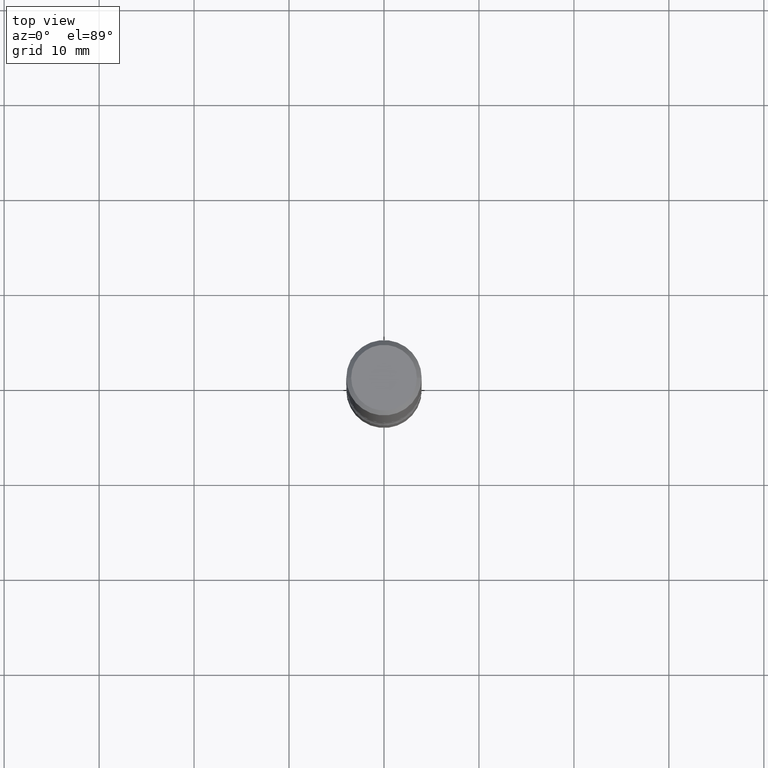
[diagram: clean part render]
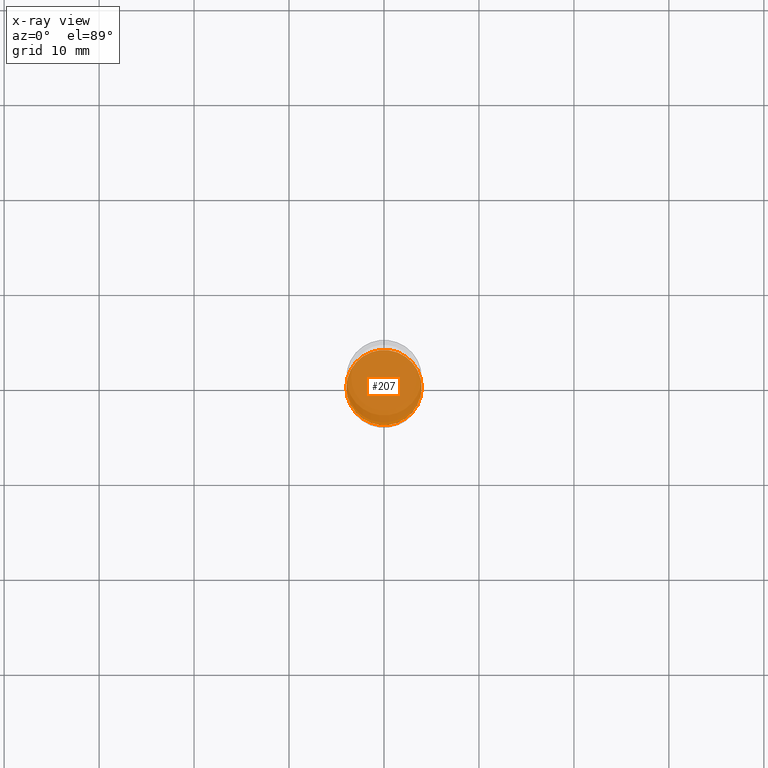
[diagram: x-ray — body ghosted, one internal face saturated and labeled with its STEP entity id]
A machine part, top view, then the same camera in x-ray: the body is ghosted and one INTERNAL B-rep face — a face not visible from any outside direction — is saturated and labeled: STEP entity #207.
In plain terms, the highlighted planar face has unit normal (0, -0, -1).
Its self-contained STEP definition (entity closure, byte-faithful):
#1 = VERTEX_POINT ( 'NONE', #132 ) ;
#9 = PLANE ( 'NONE',  #422 ) ;
#35 = CIRCLE ( 'NONE', #415, 0.1562500000000001110 ) ;
#132 = CARTESIAN_POINT ( 'NONE',  ( 0.1562500000000001110, -9.383356098140953236E-15, -2.375000000000000444 ) ) ;
#144 = CARTESIAN_POINT ( 'NONE',  ( -0.1562500000000001110, -8.255675666821583237E-15, -2.375000000000000444 ) ) ;
#148 = DIRECTION ( 'NONE',  ( -2.445468806185136597E-29, 3.491481338843145583E-15, 1.000000000000000000 ) ) ;
#188 = CARTESIAN_POINT ( 'NONE',  ( 5.807988414689700538E-29, -8.292268179752471696E-15, -2.375000000000000444 ) ) ;
#207 = ADVANCED_FACE ( 'NONE', ( #260 ), #9, .F. ) ;
#220 = DIRECTION ( 'NONE',  ( 2.438088387897960049E-29, -3.491481338843145188E-15, -1.000000000000000000 ) ) ;
#237 = CIRCLE ( 'NONE', #405, 0.1562500000000001110 ) ;
#256 = EDGE_LOOP ( 'NONE', ( #426, #476 ) ) ;
#260 = FACE_OUTER_BOUND ( 'NONE', #256, .T. ) ;
#274 = DIRECTION ( 'NONE',  ( -2.445468806185136597E-29, 3.491481338843145583E-15, 1.000000000000000000 ) ) ;
#278 = CARTESIAN_POINT ( 'NONE',  ( 5.807988414689700538E-29, -8.292268179752471696E-15, -2.375000000000000444 ) ) ;
#343 = DIRECTION ( 'NONE',  ( -1.000000000000000000, 6.982962677686265922E-15, -4.876176775795935793E-29 ) ) ;
#347 = CARTESIAN_POINT ( 'NONE',  ( 5.807988414689700538E-29, -8.292268179752471696E-15, -2.375000000000000444 ) ) ;
#362 = DIRECTION ( 'NONE',  ( 1.000000000000000000, -6.982962677686270655E-15, 0.000000000000000000 ) ) ;
#382 = EDGE_CURVE ( 'NONE', #1, #385, #237, .T. ) ;
#385 = VERTEX_POINT ( 'NONE', #144 ) ;
#405 = AXIS2_PLACEMENT_3D ( 'NONE', #278, #274, #506 ) ;
#415 = AXIS2_PLACEMENT_3D ( 'NONE', #188, #148, #362 ) ;
#422 = AXIS2_PLACEMENT_3D ( 'NONE', #347, #220, #343 ) ;
#426 = ORIENTED_EDGE ( 'NONE', *, *, #382, .T. ) ;
#436 = EDGE_CURVE ( 'NONE', #385, #1, #35, .T. ) ;
#476 = ORIENTED_EDGE ( 'NONE', *, *, #436, .T. ) ;
#506 = DIRECTION ( 'NONE',  ( 1.000000000000000000, -6.982962677686270655E-15, 0.000000000000000000 ) ) ;